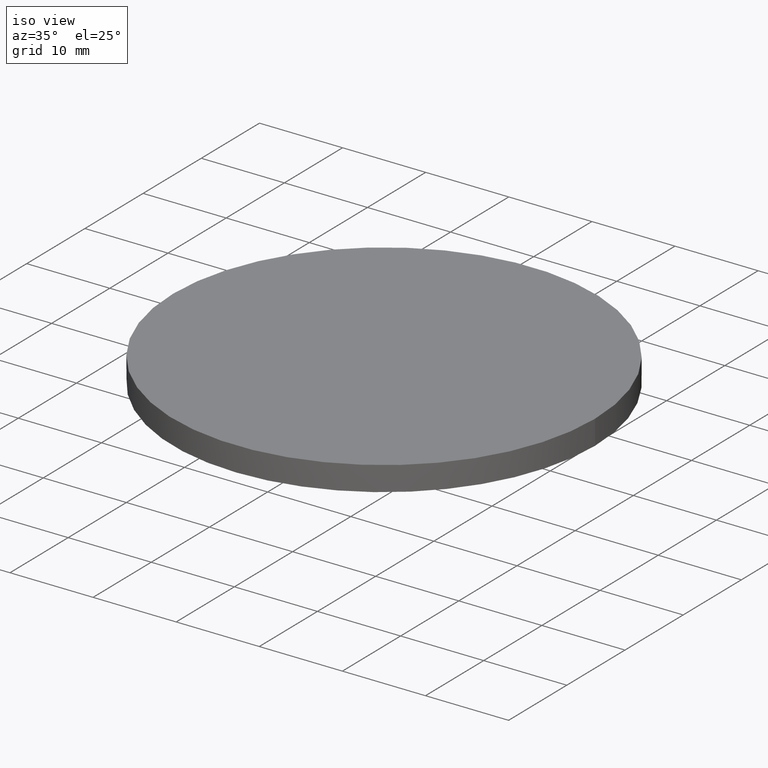
[diagram: clean part render]
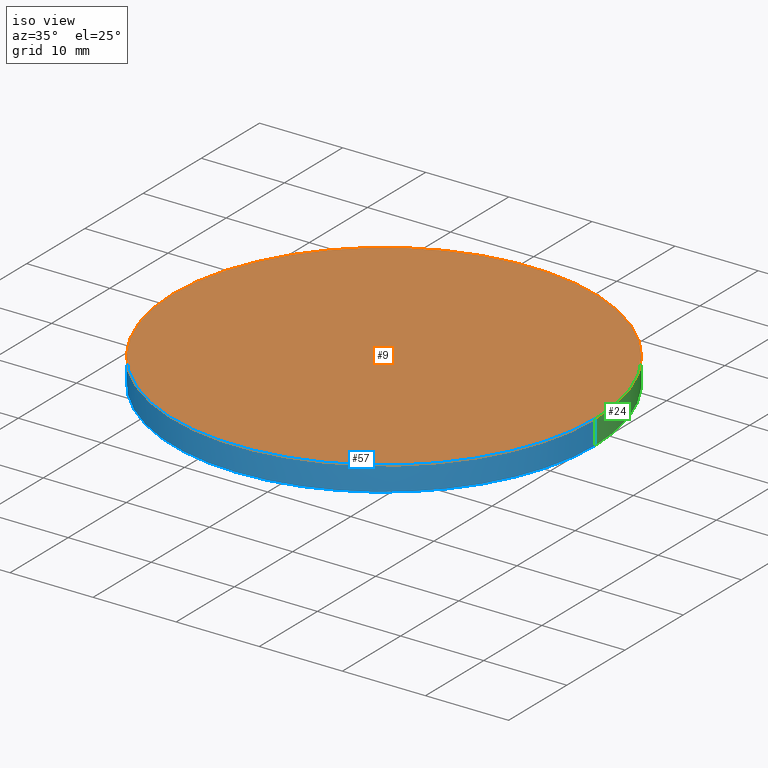
[diagram: same view with three faces highlighted in distinct colors, each labeled with its STEP entity id]
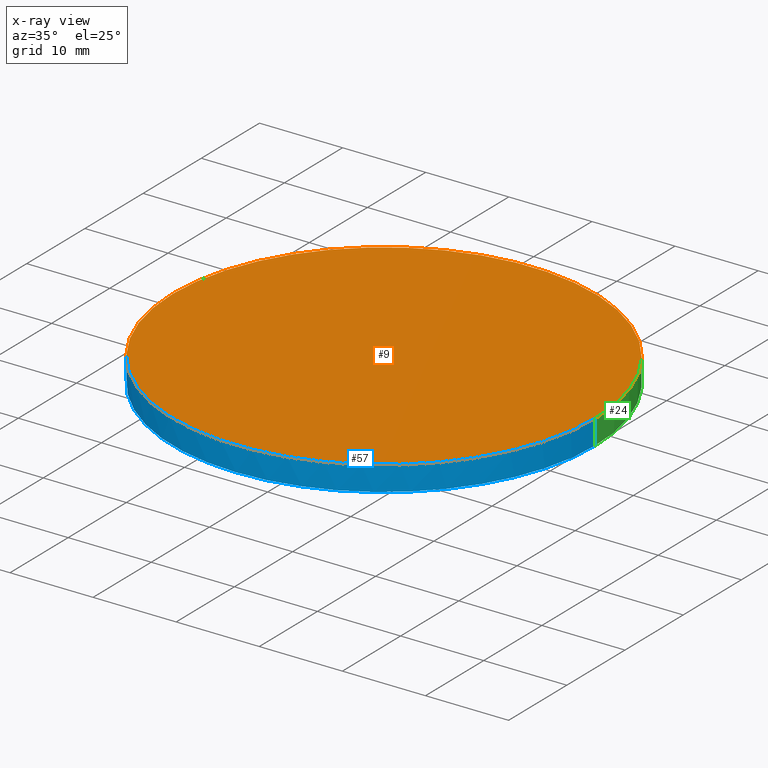
[diagram: x-ray of the same camera — body ghosted, the three highlighted faces saturated]
A machine part, iso view with three faces highlighted in distinct colors.
The next image is the same camera in x-ray (body ghosted, the three faces saturated) — at least one of them is partly hidden behind the body in this view.
Their STEP definitions:

[orange] entity #9 — the highlighted planar face has unit normal (0, 0, 1).
#1 = DIRECTION ( 'NONE',  ( 1.000000000000000000, 0.0000000000000000000, 0.0000000000000000000 ) ) ;
#9 = ADVANCED_FACE ( 'NONE', ( #120 ), #62, .T. ) ;
#12 = DIRECTION ( 'NONE',  ( 0.0000000000000000000, 0.0000000000000000000, 1.000000000000000000 ) ) ;
#23 = CARTESIAN_POINT ( 'NONE',  ( 9.992007221626412800E-016, 4.884981308350691100E-015, 6.099999999999999600 ) ) ;
#25 = AXIS2_PLACEMENT_3D ( 'NONE', #47, #214, #175 ) ;
#29 = VERTEX_POINT ( 'NONE', #207 ) ;
#33 = VERTEX_POINT ( 'NONE', #118 ) ;
#35 = DIRECTION ( 'NONE',  ( -0.0000000000000000000, -0.0000000000000000000, -1.000000000000000000 ) ) ;
#44 = AXIS2_PLACEMENT_3D ( 'NONE', #65, #12, #157 ) ;
#47 = CARTESIAN_POINT ( 'NONE',  ( 9.992007221626412800E-016, 4.884981308350691100E-015, 6.099999999999999600 ) ) ;
#62 = PLANE ( 'NONE',  #44 ) ;
#65 = CARTESIAN_POINT ( 'NONE',  ( 0.0000000000000000000, 52.02000000000000300, 6.099999999999999600 ) ) ;
#67 = ORIENTED_EDGE ( 'NONE', *, *, #208, .F. ) ;
#69 = CIRCLE ( 'NONE', #198, 25.39999999999999900 ) ;
#82 = EDGE_CURVE ( 'NONE', #33, #29, #194, .T. ) ;
#118 = CARTESIAN_POINT ( 'NONE',  ( -25.39999999999999900, 7.995584178184967200E-015, 6.099999999999999600 ) ) ;
#120 = FACE_OUTER_BOUND ( 'NONE', #217, .T. ) ;
#142 = ORIENTED_EDGE ( 'NONE', *, *, #82, .F. ) ;
#157 = DIRECTION ( 'NONE',  ( 1.000000000000000000, 0.0000000000000000000, -0.0000000000000000000 ) ) ;
#175 = DIRECTION ( 'NONE',  ( 1.000000000000000000, 0.0000000000000000000, 0.0000000000000000000 ) ) ;
#194 = CIRCLE ( 'NONE', #25, 25.39999999999999900 ) ;
#198 = AXIS2_PLACEMENT_3D ( 'NONE', #23, #35, #1 ) ;
#207 = CARTESIAN_POINT ( 'NONE',  ( 25.39999999999999900, 4.884981308350691100E-015, 6.099999999999999600 ) ) ;
#208 = EDGE_CURVE ( 'NONE', #29, #33, #69, .T. ) ;
#214 = DIRECTION ( 'NONE',  ( -0.0000000000000000000, -0.0000000000000000000, -1.000000000000000000 ) ) ;
#217 = EDGE_LOOP ( 'NONE', ( #67, #142 ) ) ;

[blue] entity #57 — the highlighted cylindrical surface (partial cylindrical patch) has radius 25.4 mm, axis along (0, 0, 1).
#1 = DIRECTION ( 'NONE',  ( 1.000000000000000000, 0.0000000000000000000, 0.0000000000000000000 ) ) ;
#14 = LINE ( 'NONE', #191, #171 ) ;
#16 = DIRECTION ( 'NONE',  ( -0.0000000000000000000, -0.0000000000000000000, -1.000000000000000000 ) ) ;
#17 = CARTESIAN_POINT ( 'NONE',  ( 9.992007221626412800E-016, 4.884981308350691100E-015, 3.158814409218349900 ) ) ;
#22 = CYLINDRICAL_SURFACE ( 'NONE', #223, 25.39999999999999900 ) ;
#23 = CARTESIAN_POINT ( 'NONE',  ( 9.992007221626412800E-016, 4.884981308350691100E-015, 6.099999999999999600 ) ) ;
#26 = VERTEX_POINT ( 'NONE', #46 ) ;
#29 = VERTEX_POINT ( 'NONE', #207 ) ;
#31 = EDGE_CURVE ( 'NONE', #181, #33, #199, .T. ) ;
#32 = DIRECTION ( 'NONE',  ( 1.000000000000000000, 0.0000000000000000000, 0.0000000000000000000 ) ) ;
#33 = VERTEX_POINT ( 'NONE', #118 ) ;
#35 = DIRECTION ( 'NONE',  ( -0.0000000000000000000, -0.0000000000000000000, -1.000000000000000000 ) ) ;
#39 = ORIENTED_EDGE ( 'NONE', *, *, #127, .T. ) ;
#46 = CARTESIAN_POINT ( 'NONE',  ( 25.39999999999999900, 4.884981308350691100E-015, 3.158814409218349900 ) ) ;
#51 = CIRCLE ( 'NONE', #85, 25.39999999999999900 ) ;
#57 = ADVANCED_FACE ( 'NONE', ( #222 ), #22, .T. ) ;
#60 = CIRCLE ( 'NONE', #160, 25.39999999999999900 ) ;
#64 = CARTESIAN_POINT ( 'NONE',  ( 9.992007221626412800E-016, 4.884981308350691100E-015, 3.158814409218349900 ) ) ;
#68 = CARTESIAN_POINT ( 'NONE',  ( 9.992007221626412800E-016, 4.884981308350691100E-015, 3.158814409218349900 ) ) ;
#69 = CIRCLE ( 'NONE', #198, 25.39999999999999900 ) ;
#85 = AXIS2_PLACEMENT_3D ( 'NONE', #17, #16, #32 ) ;
#98 = VERTEX_POINT ( 'NONE', #190 ) ;
#116 = DIRECTION ( 'NONE',  ( 0.0000000000000000000, 0.0000000000000000000, 1.000000000000000000 ) ) ;
#117 = VECTOR ( 'NONE', #225, 1000.000000000000000 ) ;
#118 = CARTESIAN_POINT ( 'NONE',  ( -25.39999999999999900, 7.995584178184967200E-015, 6.099999999999999600 ) ) ;
#127 = EDGE_CURVE ( 'NONE', #26, #29, #14, .T. ) ;
#131 = EDGE_LOOP ( 'NONE', ( #167, #176, #226, #39, #161 ) ) ;
#132 = EDGE_CURVE ( 'NONE', #26, #98, #60, .T. ) ;
#140 = DIRECTION ( 'NONE',  ( -0.0000000000000000000, -0.0000000000000000000, -1.000000000000000000 ) ) ;
#150 = EDGE_CURVE ( 'NONE', #98, #181, #51, .T. ) ;
#160 = AXIS2_PLACEMENT_3D ( 'NONE', #68, #140, #231 ) ;
#161 = ORIENTED_EDGE ( 'NONE', *, *, #208, .T. ) ;
#167 = ORIENTED_EDGE ( 'NONE', *, *, #31, .F. ) ;
#171 = VECTOR ( 'NONE', #178, 1000.000000000000000 ) ;
#174 = DIRECTION ( 'NONE',  ( 1.000000000000000000, 0.0000000000000000000, 0.0000000000000000000 ) ) ;
#176 = ORIENTED_EDGE ( 'NONE', *, *, #150, .F. ) ;
#178 = DIRECTION ( 'NONE',  ( 0.0000000000000000000, 0.0000000000000000000, 1.000000000000000000 ) ) ;
#181 = VERTEX_POINT ( 'NONE', #230 ) ;
#188 = CARTESIAN_POINT ( 'NONE',  ( -25.39999999999999900, 7.995584178184967200E-015, 3.158814409218349900 ) ) ;
#190 = CARTESIAN_POINT ( 'NONE',  ( -2.136858017711129700E-014, -25.39999999999998800, 3.158814409218356500 ) ) ;
#191 = CARTESIAN_POINT ( 'NONE',  ( 25.39999999999999900, 4.884981308350691100E-015, 3.158814409218349900 ) ) ;
#198 = AXIS2_PLACEMENT_3D ( 'NONE', #23, #35, #1 ) ;
#199 = LINE ( 'NONE', #188, #117 ) ;
#207 = CARTESIAN_POINT ( 'NONE',  ( 25.39999999999999900, 4.884981308350691100E-015, 6.099999999999999600 ) ) ;
#208 = EDGE_CURVE ( 'NONE', #29, #33, #69, .T. ) ;
#222 = FACE_OUTER_BOUND ( 'NONE', #131, .T. ) ;
#223 = AXIS2_PLACEMENT_3D ( 'NONE', #64, #116, #174 ) ;
#225 = DIRECTION ( 'NONE',  ( 0.0000000000000000000, 0.0000000000000000000, 1.000000000000000000 ) ) ;
#226 = ORIENTED_EDGE ( 'NONE', *, *, #132, .F. ) ;
#230 = CARTESIAN_POINT ( 'NONE',  ( -25.39999999999999900, 7.995584178184967200E-015, 3.158814409218349900 ) ) ;
#231 = DIRECTION ( 'NONE',  ( 1.000000000000000000, 0.0000000000000000000, 0.0000000000000000000 ) ) ;

[green] entity #24 — the highlighted cylindrical surface (partial cylindrical patch) has radius 25.4 mm, axis along (0, 0, 1).
#8 = CIRCLE ( 'NONE', #112, 25.39999999999999900 ) ;
#11 = ORIENTED_EDGE ( 'NONE', *, *, #127, .F. ) ;
#14 = LINE ( 'NONE', #191, #171 ) ;
#24 = ADVANCED_FACE ( 'NONE', ( #109 ), #42, .T. ) ;
#25 = AXIS2_PLACEMENT_3D ( 'NONE', #47, #214, #175 ) ;
#26 = VERTEX_POINT ( 'NONE', #46 ) ;
#29 = VERTEX_POINT ( 'NONE', #207 ) ;
#31 = EDGE_CURVE ( 'NONE', #181, #33, #199, .T. ) ;
#33 = VERTEX_POINT ( 'NONE', #118 ) ;
#42 = CYLINDRICAL_SURFACE ( 'NONE', #110, 25.39999999999999900 ) ;
#46 = CARTESIAN_POINT ( 'NONE',  ( 25.39999999999999900, 4.884981308350691100E-015, 3.158814409218349900 ) ) ;
#47 = CARTESIAN_POINT ( 'NONE',  ( 9.992007221626412800E-016, 4.884981308350691100E-015, 6.099999999999999600 ) ) ;
#50 = DIRECTION ( 'NONE',  ( 1.000000000000000000, 0.0000000000000000000, 0.0000000000000000000 ) ) ;
#63 = CIRCLE ( 'NONE', #168, 25.39999999999999900 ) ;
#74 = ORIENTED_EDGE ( 'NONE', *, *, #173, .F. ) ;
#82 = EDGE_CURVE ( 'NONE', #33, #29, #194, .T. ) ;
#83 = CARTESIAN_POINT ( 'NONE',  ( -2.136858017711129700E-014, 25.39999999999998400, 3.158814409218356500 ) ) ;
#102 = VERTEX_POINT ( 'NONE', #83 ) ;
#105 = ORIENTED_EDGE ( 'NONE', *, *, #82, .T. ) ;
#109 = FACE_OUTER_BOUND ( 'NONE', #234, .T. ) ;
#110 = AXIS2_PLACEMENT_3D ( 'NONE', #139, #228, #187 ) ;
#112 = AXIS2_PLACEMENT_3D ( 'NONE', #143, #215, #209 ) ;
#114 = ORIENTED_EDGE ( 'NONE', *, *, #31, .T. ) ;
#117 = VECTOR ( 'NONE', #225, 1000.000000000000000 ) ;
#118 = CARTESIAN_POINT ( 'NONE',  ( -25.39999999999999900, 7.995584178184967200E-015, 6.099999999999999600 ) ) ;
#127 = EDGE_CURVE ( 'NONE', #26, #29, #14, .T. ) ;
#133 = EDGE_CURVE ( 'NONE', #102, #26, #63, .T. ) ;
#139 = CARTESIAN_POINT ( 'NONE',  ( 9.992007221626412800E-016, 4.884981308350691100E-015, 3.158814409218349900 ) ) ;
#143 = CARTESIAN_POINT ( 'NONE',  ( 9.992007221626412800E-016, 4.884981308350691100E-015, 3.158814409218349900 ) ) ;
#168 = AXIS2_PLACEMENT_3D ( 'NONE', #192, #232, #50 ) ;
#171 = VECTOR ( 'NONE', #178, 1000.000000000000000 ) ;
#173 = EDGE_CURVE ( 'NONE', #181, #102, #8, .T. ) ;
#175 = DIRECTION ( 'NONE',  ( 1.000000000000000000, 0.0000000000000000000, 0.0000000000000000000 ) ) ;
#178 = DIRECTION ( 'NONE',  ( 0.0000000000000000000, 0.0000000000000000000, 1.000000000000000000 ) ) ;
#181 = VERTEX_POINT ( 'NONE', #230 ) ;
#185 = ORIENTED_EDGE ( 'NONE', *, *, #133, .F. ) ;
#187 = DIRECTION ( 'NONE',  ( 1.000000000000000000, 0.0000000000000000000, 0.0000000000000000000 ) ) ;
#188 = CARTESIAN_POINT ( 'NONE',  ( -25.39999999999999900, 7.995584178184967200E-015, 3.158814409218349900 ) ) ;
#191 = CARTESIAN_POINT ( 'NONE',  ( 25.39999999999999900, 4.884981308350691100E-015, 3.158814409218349900 ) ) ;
#192 = CARTESIAN_POINT ( 'NONE',  ( 9.992007221626412800E-016, 4.884981308350691100E-015, 3.158814409218349900 ) ) ;
#194 = CIRCLE ( 'NONE', #25, 25.39999999999999900 ) ;
#199 = LINE ( 'NONE', #188, #117 ) ;
#207 = CARTESIAN_POINT ( 'NONE',  ( 25.39999999999999900, 4.884981308350691100E-015, 6.099999999999999600 ) ) ;
#209 = DIRECTION ( 'NONE',  ( 1.000000000000000000, 0.0000000000000000000, 0.0000000000000000000 ) ) ;
#214 = DIRECTION ( 'NONE',  ( -0.0000000000000000000, -0.0000000000000000000, -1.000000000000000000 ) ) ;
#215 = DIRECTION ( 'NONE',  ( -0.0000000000000000000, -0.0000000000000000000, -1.000000000000000000 ) ) ;
#225 = DIRECTION ( 'NONE',  ( 0.0000000000000000000, 0.0000000000000000000, 1.000000000000000000 ) ) ;
#228 = DIRECTION ( 'NONE',  ( 0.0000000000000000000, 0.0000000000000000000, 1.000000000000000000 ) ) ;
#230 = CARTESIAN_POINT ( 'NONE',  ( -25.39999999999999900, 7.995584178184967200E-015, 3.158814409218349900 ) ) ;
#232 = DIRECTION ( 'NONE',  ( -0.0000000000000000000, -0.0000000000000000000, -1.000000000000000000 ) ) ;
#234 = EDGE_LOOP ( 'NONE', ( #74, #114, #105, #11, #185 ) ) ;